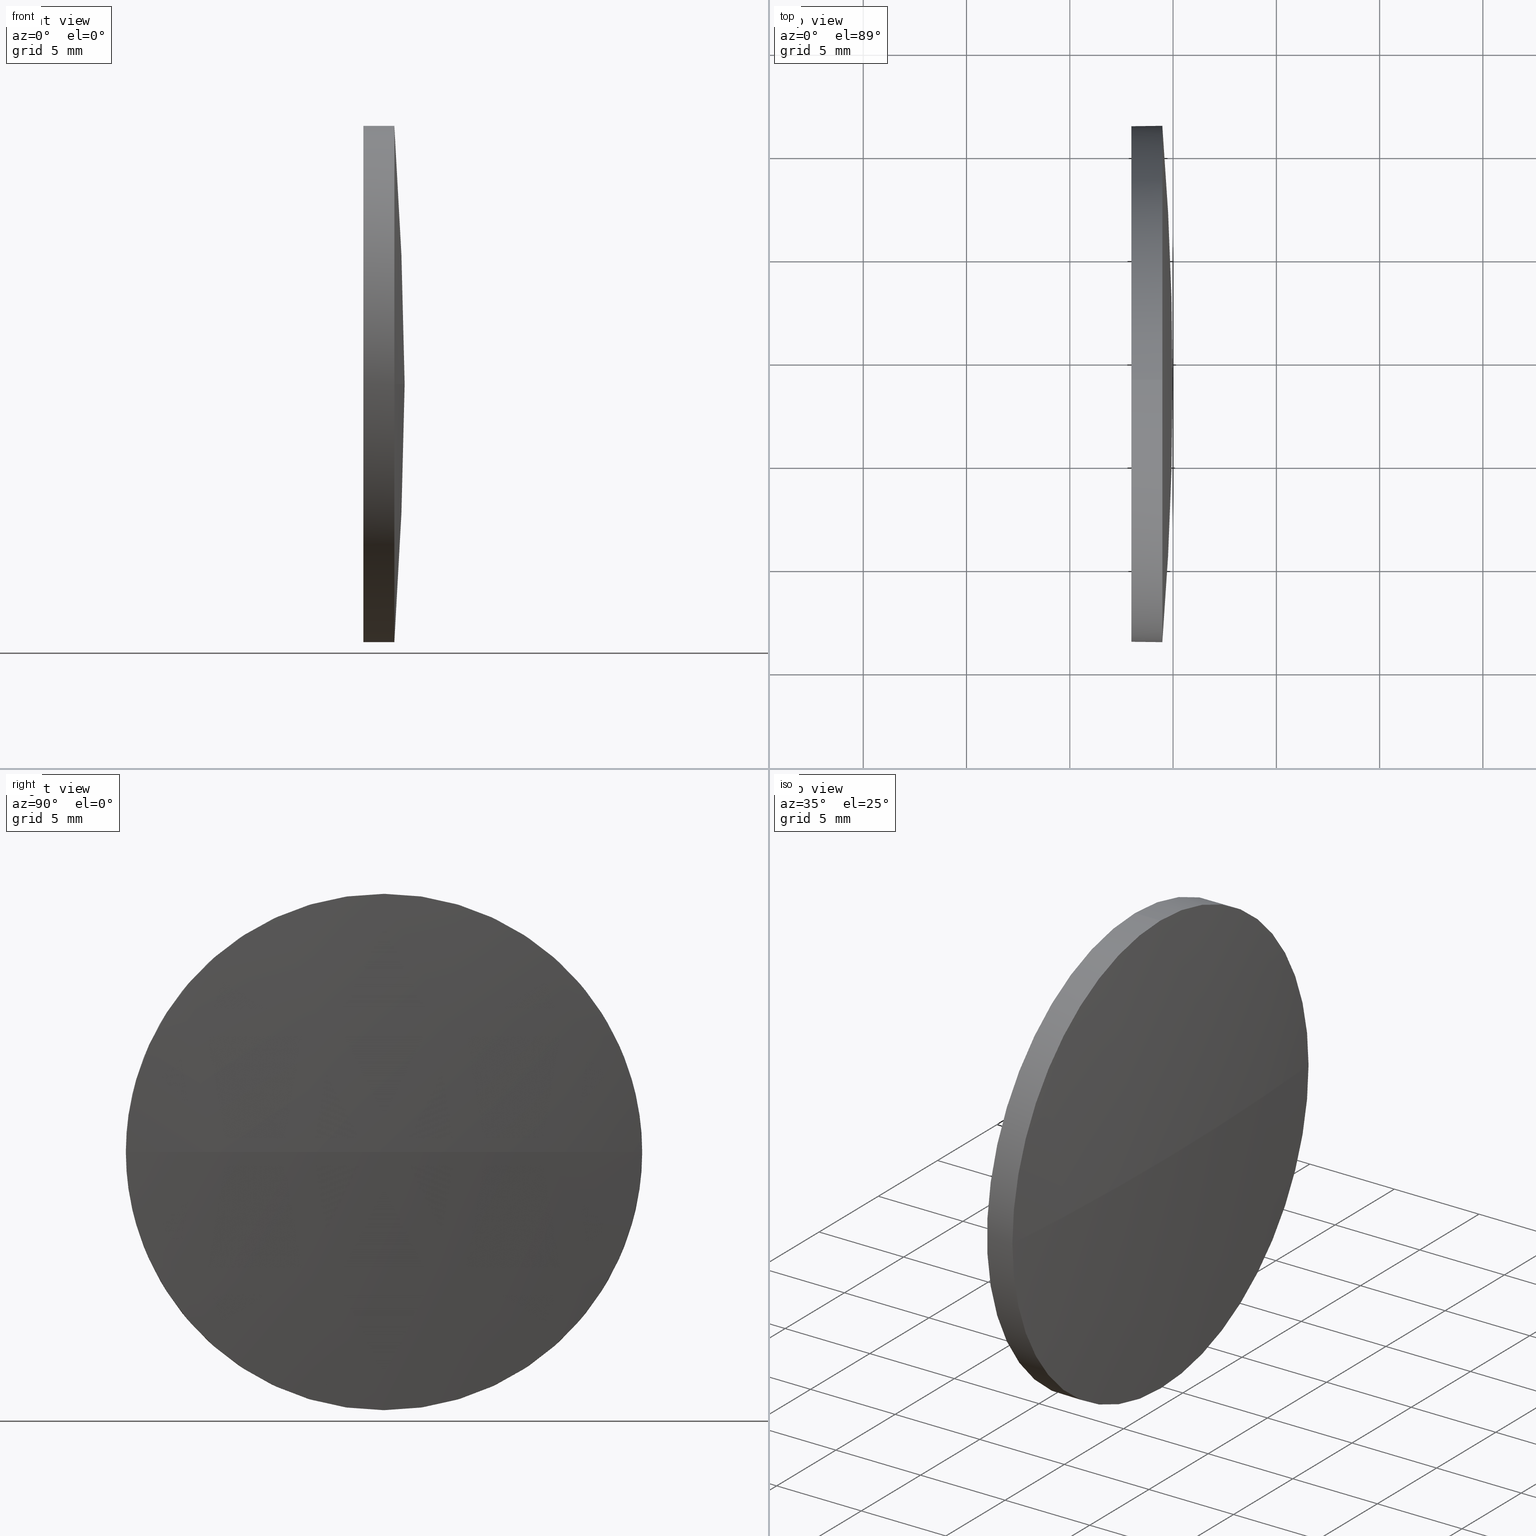
[diagram: canonical four-view strip — front | top / right | iso, engineering-drawing reading convention]
A machine part, canonical four-view strip (front | top / right | iso — engineering-drawing reading convention). The complete STEP part file that produces these views, byte-faithful:
ISO-10303-21;
HEADER;
FILE_DESCRIPTION (( 'STEP AP214' ),
    '1' );
FILE_NAME ('100135.STEP',
    '2019-05-15T02:13:53',
    ( '' ),
    ( '' ),
    'SwSTEP 2.0',
    'SolidWorks 2016',
    '' );
FILE_SCHEMA (( 'AUTOMOTIVE_DESIGN' ));
ENDSEC;

DATA;
#1 = APPLICATION_PROTOCOL_DEFINITION ( 'draft international standard', 'automotive_design', 1998, #127 ) ;
#2 = ORIENTED_EDGE ( 'NONE', *, *, #123, .T. ) ;
#3 = EDGE_CURVE ( 'NONE', #79, #119, #166, .T. ) ;
#4 = CYLINDRICAL_SURFACE ( 'NONE', #181, 12.50000000000001100 ) ;
#5 = PRODUCT_DEFINITION_CONTEXT ( 'detailed design', #127, 'design' ) ;
#6 = AXIS2_PLACEMENT_3D ( 'NONE', #16, #65, #53 ) ;
#7 =( NAMED_UNIT ( * ) PLANE_ANGLE_UNIT ( ) SI_UNIT ( $, .RADIAN. ) );
#8 = PRESENTATION_STYLE_ASSIGNMENT (( #90 ) ) ;
#9 = CARTESIAN_POINT ( 'NONE',  ( 492.9792713746937200, 143.8584804558214500, 0.0000000000000000000 ) ) ;
#10 = CARTESIAN_POINT ( 'NONE',  ( 494.4792713746937200, 143.8584804558214500, 12.50000000000001100 ) ) ;
#11 = EDGE_CURVE ( 'NONE', #119, #47, #168, .T. ) ;
#12 = EDGE_LOOP ( 'NONE', ( #135, #25, #153, #83, #75 ) ) ;
#13 = CARTESIAN_POINT ( 'NONE',  ( 490.6136554719327600, 143.8584804558214500, -12.50000000000001100 ) ) ;
#14 = FILL_AREA_STYLE_COLOUR ( '', #134 ) ;
#15 = EDGE_CURVE ( 'NONE', #47, #51, #87, .T. ) ;
#16 = CARTESIAN_POINT ( 'NONE',  ( 338.4792713746936700, 143.8584804558213600, 0.0000000000000000000 ) ) ;
#17 = DIRECTION ( 'NONE',  ( 0.0000000000000000000, 0.0000000000000000000, 1.000000000000000000 ) ) ;
#18 = CARTESIAN_POINT ( 'NONE',  ( 494.4792713746937200, 143.8584804558214500, -12.50000000000001100 ) ) ;
#19 = SURFACE_STYLE_FILL_AREA ( #56 ) ;
#20 = PRODUCT_DEFINITION_FORMATION_WITH_SPECIFIED_SOURCE ( '�κ�', '', #61, .NOT_KNOWN. ) ;
#21 =( NAMED_UNIT ( * ) PLANE_ANGLE_UNIT ( ) SI_UNIT ( $, .RADIAN. ) );
#22 = AXIS2_PLACEMENT_3D ( 'NONE', #184, #81, #17 ) ;
#23 = CLOSED_SHELL ( 'NONE', ( #76, #103, #78, #93, #39 ) ) ;
#24 = UNCERTAINTY_MEASURE_WITH_UNIT (LENGTH_MEASURE( 1.000000000000000100E-005 ), #174, 'distance_accuracy_value', 'NONE');
#25 = ORIENTED_EDGE ( 'NONE', *, *, #11, .T. ) ;
#26 = MECHANICAL_DESIGN_GEOMETRIC_PRESENTATION_REPRESENTATION (  '', ( #58 ), #107 ) ;
#27 =( NAMED_UNIT ( * ) SI_UNIT ( $, .STERADIAN. ) SOLID_ANGLE_UNIT ( ) );
#28 = CIRCLE ( 'NONE', #22, 12.50000000000001100 ) ;
#29 = EDGE_LOOP ( 'NONE', ( #71, #148, #120, #52 ) ) ;
#30 = DIRECTION ( 'NONE',  ( -1.000000000000000000, -0.0000000000000000000, -0.0000000000000000000 ) ) ;
#31 = CARTESIAN_POINT ( 'NONE',  ( 494.4792713746937200, 143.8584804558214500, 0.0000000000000000000 ) ) ;
#32 = DIRECTION ( 'NONE',  ( -0.0000000000000000000, 0.0000000000000000000, -1.000000000000000000 ) ) ;
#33 = PRODUCT_CONTEXT ( 'NONE', #104, 'mechanical' ) ;
#34 = CARTESIAN_POINT ( 'NONE',  ( 0.0000000000000000000, 0.0000000000000000000, 0.0000000000000000000 ) ) ;
#35 = LINE ( 'NONE', #110, #150 ) ;
#36 = FACE_OUTER_BOUND ( 'NONE', #12, .T. ) ;
#37 = PLANE ( 'NONE',  #147 ) ;
#38 = EDGE_LOOP ( 'NONE', ( #80, #2, #160, #162, #117 ) ) ;
#39 = ADVANCED_FACE ( 'NONE', ( #155 ), #37, .F. ) ;
#40 = APPLICATION_PROTOCOL_DEFINITION ( 'draft international standard', 'automotive_design', 1998, #104 ) ;
#41 = FACE_OUTER_BOUND ( 'NONE', #38, .T. ) ;
#42 = DIRECTION ( 'NONE',  ( -1.000000000000000000, -0.0000000000000000000, -0.0000000000000000000 ) ) ;
#43 = DIRECTION ( 'NONE',  ( 0.0000000000000000000, 0.0000000000000000000, 1.000000000000000000 ) ) ;
#44 = VERTEX_POINT ( 'NONE', #50 ) ;
#45 = CIRCLE ( 'NONE', #94, 156.5000000000000300 ) ;
#46 = ORIENTED_EDGE ( 'NONE', *, *, #84, .T. ) ;
#47 = VERTEX_POINT ( 'NONE', #165 ) ;
#48 = SURFACE_STYLE_FILL_AREA ( #100 ) ;
#49 =( GEOMETRIC_REPRESENTATION_CONTEXT ( 3 ) GLOBAL_UNCERTAINTY_ASSIGNED_CONTEXT ( ( #101 ) ) GLOBAL_UNIT_ASSIGNED_CONTEXT ( ( #82, #186, #85 ) ) REPRESENTATION_CONTEXT ( 'NONE', 'WORKASPACE' ) );
#50 = CARTESIAN_POINT ( 'NONE',  ( 494.9792713746937200, 143.8584804558213600, 0.0000000000000000000 ) ) ;
#51 = VERTEX_POINT ( 'NONE', #10 ) ;
#52 = ORIENTED_EDGE ( 'NONE', *, *, #15, .F. ) ;
#53 = DIRECTION ( 'NONE',  ( 0.0000000000000000000, 1.000000000000000000, 0.0000000000000000000 ) ) ;
#54 = DIRECTION ( 'NONE',  ( 0.0000000000000000000, 0.0000000000000000000, 1.000000000000000000 ) ) ;
#55 = DIRECTION ( 'NONE',  ( -0.0000000000000000000, 0.0000000000000000000, 1.000000000000000000 ) ) ;
#56 = FILL_AREA_STYLE ('',( #14 ) ) ;
#57 = ORIENTED_EDGE ( 'NONE', *, *, #139, .F. ) ;
#58 = STYLED_ITEM ( 'NONE', ( #173 ), #136 ) ;
#59 = DIRECTION ( 'NONE',  ( -1.000000000000000000, -0.0000000000000000000, -0.0000000000000000000 ) ) ;
#60 = FACE_OUTER_BOUND ( 'NONE', #182, .T. ) ;
#61 = PRODUCT ( '100135', '100135', '', ( #33 ) ) ;
#62 = CARTESIAN_POINT ( 'NONE',  ( 494.4792713746937200, 143.8584804558214500, 0.0000000000000000000 ) ) ;
#63 = SURFACE_SIDE_STYLE ('',( #48 ) ) ;
#64 = DIRECTION ( 'NONE',  ( 0.0000000000000000000, 0.0000000000000000000, 1.000000000000000000 ) ) ;
#65 = DIRECTION ( 'NONE',  ( -0.0000000000000000000, 0.0000000000000000000, -1.000000000000000000 ) ) ;
#66 = CARTESIAN_POINT ( 'NONE',  ( 494.4792713746937200, 156.3584804558213900, 0.0000000000000000000 ) ) ;
#67 = FACE_OUTER_BOUND ( 'NONE', #29, .T. ) ;
#68 = SURFACE_STYLE_USAGE ( .BOTH. , #96 ) ;
#69 = MANIFOLD_SOLID_BREP ( '��ת1', #23 ) ;
#70 = VECTOR ( 'NONE', #172, 1000.000000000000000 ) ;
#71 = ORIENTED_EDGE ( 'NONE', *, *, #98, .F. ) ;
#72 = SHAPE_DEFINITION_REPRESENTATION ( #73, #136 ) ;
#73 = PRODUCT_DEFINITION_SHAPE ( 'NONE', 'NONE',  #74 ) ;
#74 = PRODUCT_DEFINITION ( 'δ֪', '', #20, #5 ) ;
#75 = ORIENTED_EDGE ( 'NONE', *, *, #92, .F. ) ;
#76 = ADVANCED_FACE ( 'NONE', ( #41 ), #97, .T. ) ;
#77 = DIRECTION ( 'NONE',  ( 0.0000000000000000000, 0.0000000000000000000, -1.000000000000000000 ) ) ;
#78 = ADVANCED_FACE ( 'NONE', ( #67 ), #108, .T. ) ;
#79 = VERTEX_POINT ( 'NONE', #66 ) ;
#80 = ORIENTED_EDGE ( 'NONE', *, *, #3, .T. ) ;
#81 = DIRECTION ( 'NONE',  ( -1.000000000000000000, -0.0000000000000000000, -0.0000000000000000000 ) ) ;
#82 =( LENGTH_UNIT ( ) NAMED_UNIT ( * ) SI_UNIT ( .MILLI., .METRE. ) );
#83 = ORIENTED_EDGE ( 'NONE', *, *, #163, .T. ) ;
#84 = EDGE_CURVE ( 'NONE', #149, #176, #86, .T. ) ;
#85 =( NAMED_UNIT ( * ) SI_UNIT ( $, .STERADIAN. ) SOLID_ANGLE_UNIT ( ) );
#86 = CIRCLE ( 'NONE', #164, 12.50000000000001100 ) ;
#87 = CIRCLE ( 'NONE', #169, 12.50000000000001100 ) ;
#88 = PRESENTATION_LAYER_ASSIGNMENT (  '', '', ( #130 ) ) ;
#89 = ORIENTED_EDGE ( 'NONE', *, *, #92, .T. ) ;
#90 = SURFACE_STYLE_USAGE ( .BOTH. , #63 ) ;
#91 = AXIS2_PLACEMENT_3D ( 'NONE', #145, #32, #95 ) ;
#92 = EDGE_CURVE ( 'NONE', #176, #149, #28, .T. ) ;
#93 = ADVANCED_FACE ( 'NONE', ( #36 ), #4, .T. ) ;
#94 = AXIS2_PLACEMENT_3D ( 'NONE', #124, #55, #185 ) ;
#95 = DIRECTION ( 'NONE',  ( 0.0000000000000000000, 1.000000000000000000, 0.0000000000000000000 ) ) ;
#96 = SURFACE_SIDE_STYLE ('',( #19 ) ) ;
#97 = CYLINDRICAL_SURFACE ( 'NONE', #177, 12.50000000000001100 ) ;
#98 = EDGE_CURVE ( 'NONE', #44, #47, #144, .T. ) ;
#99 = AXIS2_PLACEMENT_3D ( 'NONE', #133, #154, #64 ) ;
#100 = FILL_AREA_STYLE ('',( #179 ) ) ;
#101 = UNCERTAINTY_MEASURE_WITH_UNIT (LENGTH_MEASURE( 1.000000000000000100E-005 ), #82, 'distance_accuracy_value', 'NONE');
#102 = ORIENTED_EDGE ( 'NONE', *, *, #98, .T. ) ;
#103 = ADVANCED_FACE ( 'NONE', ( #60 ), #156, .T. ) ;
#104 = APPLICATION_CONTEXT ( 'automotive_design' ) ;
#105 = COLOUR_RGB ( '',1.000000000000000000, 1.000000000000000000, 1.000000000000000000 ) ;
#106 = CARTESIAN_POINT ( 'NONE',  ( 492.9792713746937200, 143.8584804558214500, -12.50000000000001100 ) ) ;
#107 =( GEOMETRIC_REPRESENTATION_CONTEXT ( 3 ) GLOBAL_UNCERTAINTY_ASSIGNED_CONTEXT ( ( #24 ) ) GLOBAL_UNIT_ASSIGNED_CONTEXT ( ( #174, #21, #113 ) ) REPRESENTATION_CONTEXT ( 'NONE', 'WORKASPACE' ) );
#108 = SPHERICAL_SURFACE ( 'NONE', #6, 156.5000000000000300 ) ;
#109 = CARTESIAN_POINT ( 'NONE',  ( 490.6136554719327600, 143.8584804558214500, 0.0000000000000000000 ) ) ;
#110 = CARTESIAN_POINT ( 'NONE',  ( 490.6136554719327600, 143.8584804558214500, 12.50000000000001100 ) ) ;
#111 = AXIS2_PLACEMENT_3D ( 'NONE', #62, #167, #180 ) ;
#112 = DIRECTION ( 'NONE',  ( 1.000000000000000000, 0.0000000000000000000, 0.0000000000000000000 ) ) ;
#113 =( NAMED_UNIT ( * ) SI_UNIT ( $, .STERADIAN. ) SOLID_ANGLE_UNIT ( ) );
#114 = LINE ( 'NONE', #13, #70 ) ;
#115 = EDGE_LOOP ( 'NONE', ( #46, #89 ) ) ;
#116 = CARTESIAN_POINT ( 'NONE',  ( 494.4792713746937200, 143.8584804558214500, 0.0000000000000000000 ) ) ;
#117 = ORIENTED_EDGE ( 'NONE', *, *, #146, .T. ) ;
#118 = AXIS2_PLACEMENT_3D ( 'NONE', #159, #171, #170 ) ;
#119 = VERTEX_POINT ( 'NONE', #18 ) ;
#120 = ORIENTED_EDGE ( 'NONE', *, *, #146, .F. ) ;
#121 = CARTESIAN_POINT ( 'NONE',  ( 492.9792713746937200, 143.8584804558214500, 0.0000000000000000000 ) ) ;
#122 = DIRECTION ( 'NONE',  ( -1.000000000000000000, -0.0000000000000000000, -0.0000000000000000000 ) ) ;
#123 = EDGE_CURVE ( 'NONE', #119, #176, #114, .T. ) ;
#124 = CARTESIAN_POINT ( 'NONE',  ( 338.4792713746936700, 143.8584804558213600, 0.0000000000000000000 ) ) ;
#125 = DIRECTION ( 'NONE',  ( 0.0000000000000000000, 0.0000000000000000000, 1.000000000000000000 ) ) ;
#126 = CIRCLE ( 'NONE', #129, 12.50000000000001100 ) ;
#127 = APPLICATION_CONTEXT ( 'automotive_design' ) ;
#128 = DIRECTION ( 'NONE',  ( 0.0000000000000000000, 0.0000000000000000000, 1.000000000000000000 ) ) ;
#129 = AXIS2_PLACEMENT_3D ( 'NONE', #31, #42, #43 ) ;
#130 = STYLED_ITEM ( 'NONE', ( #8 ), #69 ) ;
#131 = ORIENTED_EDGE ( 'NONE', *, *, #11, .F. ) ;
#132 = DIRECTION ( 'NONE',  ( 0.0000000000000000000, 0.0000000000000000000, 1.000000000000000000 ) ) ;
#133 = CARTESIAN_POINT ( 'NONE',  ( 494.4792713746937200, 143.8584804558214500, 0.0000000000000000000 ) ) ;
#134 = COLOUR_RGB ( '',1.000000000000000000, 1.000000000000000000, 1.000000000000000000 ) ;
#135 = ORIENTED_EDGE ( 'NONE', *, *, #123, .F. ) ;
#136 = ADVANCED_BREP_SHAPE_REPRESENTATION ( '100135', ( #69, #137 ), #49 ) ;
#137 = AXIS2_PLACEMENT_3D ( 'NONE', #34, #128, #112 ) ;
#138 = DIRECTION ( 'NONE',  ( 0.0000000000000000000, 0.0000000000000000000, 1.000000000000000000 ) ) ;
#139 = EDGE_CURVE ( 'NONE', #44, #79, #45, .T. ) ;
#140 = DIRECTION ( 'NONE',  ( -1.000000000000000000, -0.0000000000000000000, -0.0000000000000000000 ) ) ;
#141 = DIRECTION ( 'NONE',  ( -1.000000000000000000, -0.0000000000000000000, -0.0000000000000000000 ) ) ;
#142 = PRESENTATION_LAYER_ASSIGNMENT (  '', '', ( #58 ) ) ;
#143 = CARTESIAN_POINT ( 'NONE',  ( 492.9792713746937200, 143.8584804558214500, 12.50000000000001100 ) ) ;
#144 = CIRCLE ( 'NONE', #118, 156.5000000000000000 ) ;
#145 = CARTESIAN_POINT ( 'NONE',  ( 338.4792713746936700, 143.8584804558213600, 0.0000000000000000000 ) ) ;
#146 = EDGE_CURVE ( 'NONE', #51, #79, #126, .T. ) ;
#147 = AXIS2_PLACEMENT_3D ( 'NONE', #9, #151, #77 ) ;
#148 = ORIENTED_EDGE ( 'NONE', *, *, #139, .T. ) ;
#149 = VERTEX_POINT ( 'NONE', #143 ) ;
#150 = VECTOR ( 'NONE', #140, 1000.000000000000000 ) ;
#151 = DIRECTION ( 'NONE',  ( 1.000000000000000000, 0.0000000000000000000, 0.0000000000000000000 ) ) ;
#152 =( LENGTH_UNIT ( ) NAMED_UNIT ( * ) SI_UNIT ( .MILLI., .METRE. ) );
#153 = ORIENTED_EDGE ( 'NONE', *, *, #15, .T. ) ;
#154 = DIRECTION ( 'NONE',  ( -1.000000000000000000, -0.0000000000000000000, -0.0000000000000000000 ) ) ;
#155 = FACE_OUTER_BOUND ( 'NONE', #115, .T. ) ;
#156 = SPHERICAL_SURFACE ( 'NONE', #91, 156.5000000000000300 ) ;
#157 =( GEOMETRIC_REPRESENTATION_CONTEXT ( 3 ) GLOBAL_UNCERTAINTY_ASSIGNED_CONTEXT ( ( #175 ) ) GLOBAL_UNIT_ASSIGNED_CONTEXT ( ( #152, #7, #27 ) ) REPRESENTATION_CONTEXT ( 'NONE', 'WORKASPACE' ) );
#158 = CARTESIAN_POINT ( 'NONE',  ( 490.6136554719327600, 143.8584804558214500, 0.0000000000000000000 ) ) ;
#159 = CARTESIAN_POINT ( 'NONE',  ( 338.4792713746936700, 143.8584804558213600, 0.0000000000000000000 ) ) ;
#160 = ORIENTED_EDGE ( 'NONE', *, *, #84, .F. ) ;
#161 = PRODUCT_RELATED_PRODUCT_CATEGORY ( 'part', '', ( #61 ) ) ;
#162 = ORIENTED_EDGE ( 'NONE', *, *, #163, .F. ) ;
#163 = EDGE_CURVE ( 'NONE', #51, #149, #35, .T. ) ;
#164 = AXIS2_PLACEMENT_3D ( 'NONE', #121, #141, #54 ) ;
#165 = CARTESIAN_POINT ( 'NONE',  ( 494.4792713746937200, 131.3584804558213900, -1.530808498934188200E-015 ) ) ;
#166 = CIRCLE ( 'NONE', #99, 12.50000000000001100 ) ;
#167 = DIRECTION ( 'NONE',  ( -1.000000000000000000, -0.0000000000000000000, -0.0000000000000000000 ) ) ;
#168 = CIRCLE ( 'NONE', #111, 12.50000000000001100 ) ;
#169 = AXIS2_PLACEMENT_3D ( 'NONE', #116, #59, #132 ) ;
#170 = DIRECTION ( 'NONE',  ( 0.0000000000000000000, 1.000000000000000000, 1.224646799147353500E-016 ) ) ;
#171 = DIRECTION ( 'NONE',  ( 0.0000000000000000000, 1.224646799147353200E-016, -1.000000000000000000 ) ) ;
#172 = DIRECTION ( 'NONE',  ( -1.000000000000000000, -0.0000000000000000000, -0.0000000000000000000 ) ) ;
#173 = PRESENTATION_STYLE_ASSIGNMENT (( #68 ) ) ;
#174 =( LENGTH_UNIT ( ) NAMED_UNIT ( * ) SI_UNIT ( .MILLI., .METRE. ) );
#175 = UNCERTAINTY_MEASURE_WITH_UNIT (LENGTH_MEASURE( 1.000000000000000100E-005 ), #152, 'distance_accuracy_value', 'NONE');
#176 = VERTEX_POINT ( 'NONE', #106 ) ;
#177 = AXIS2_PLACEMENT_3D ( 'NONE', #158, #30, #138 ) ;
#178 = ORIENTED_EDGE ( 'NONE', *, *, #3, .F. ) ;
#179 = FILL_AREA_STYLE_COLOUR ( '', #105 ) ;
#180 = DIRECTION ( 'NONE',  ( 0.0000000000000000000, 0.0000000000000000000, 1.000000000000000000 ) ) ;
#181 = AXIS2_PLACEMENT_3D ( 'NONE', #109, #122, #125 ) ;
#182 = EDGE_LOOP ( 'NONE', ( #57, #102, #131, #178 ) ) ;
#183 = MECHANICAL_DESIGN_GEOMETRIC_PRESENTATION_REPRESENTATION (  '', ( #130 ), #157 ) ;
#184 = CARTESIAN_POINT ( 'NONE',  ( 492.9792713746937200, 143.8584804558214500, 0.0000000000000000000 ) ) ;
#185 = DIRECTION ( 'NONE',  ( 1.000000000000000000, 0.0000000000000000000, 0.0000000000000000000 ) ) ;
#186 =( NAMED_UNIT ( * ) PLANE_ANGLE_UNIT ( ) SI_UNIT ( $, .RADIAN. ) );
ENDSEC;
END-ISO-10303-21;
